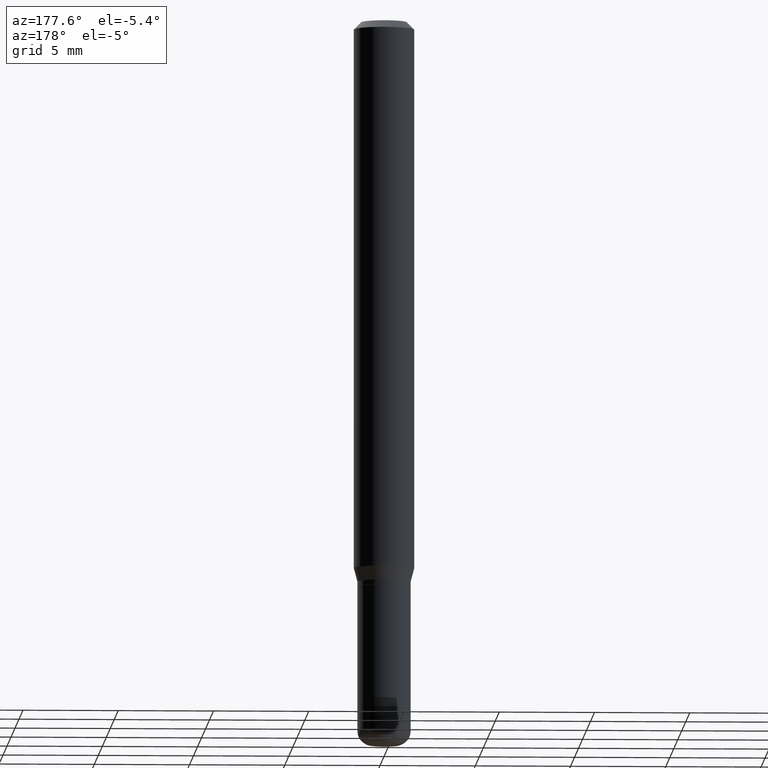
[diagram: clean part render]
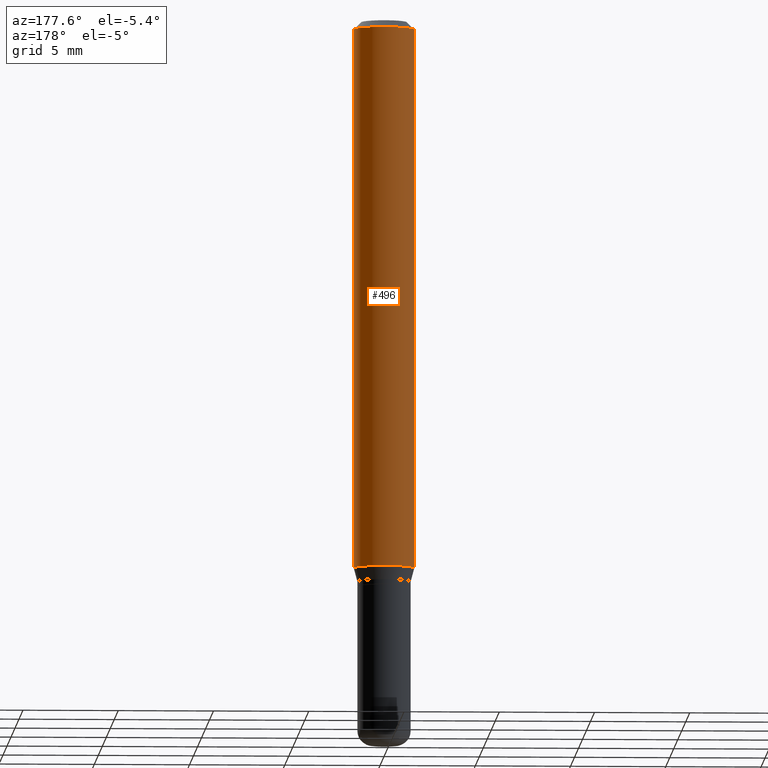
[diagram: same view with one face highlighted and labeled with its STEP entity id]
A machine part, auxiliary view. The second image highlights one B-rep face of the part: STEP entity #496.
In plain terms, the highlighted cylindrical surface (edge-blend (fillet) strip) has radius 1.5875 mm, axis along (-0, 0, 1).
Its self-contained STEP definition (entity closure, byte-faithful):
#18 = EDGE_CURVE ( 'NONE', #385, #346, #381, .T. ) ;
#55 = DIRECTION ( 'NONE',  ( -2.445468806185136597E-29, 3.491481338843145583E-15, 1.000000000000000000 ) ) ;
#78 = EDGE_CURVE ( 'NONE', #346, #249, #302, .T. ) ;
#113 = EDGE_CURVE ( 'NONE', #385, #225, #123, .T. ) ;
#123 = CIRCLE ( 'NONE', #152, 0.06250000000000000000 ) ;
#135 = LINE ( 'NONE', #264, #328 ) ;
#147 = CARTESIAN_POINT ( 'NONE',  ( 0.06250000000000000000, -4.364351673553916694E-16, 3.047610484872459871E-30 ) ) ;
#152 = AXIS2_PLACEMENT_3D ( 'NONE', #451, #327, #168 ) ;
#161 = CARTESIAN_POINT ( 'NONE',  ( 0.06250000000000000000, -4.388825627286632416E-15, -1.132009618943234042 ) ) ;
#168 = DIRECTION ( 'NONE',  ( 1.000000000000000000, -6.982962677686270655E-15, 0.000000000000000000 ) ) ;
#170 = DIRECTION ( 'NONE',  ( -2.445468806185136597E-29, 3.491481338843145583E-15, 1.000000000000000000 ) ) ;
#193 = CARTESIAN_POINT ( 'NONE',  ( -0.06250000000000000000, -1.558292130156881494E-15, -0.01499999999999970281 ) ) ;
#208 = DIRECTION ( 'NONE',  ( 1.000000000000000000, -6.982962677686266711E-15, 0.000000000000000000 ) ) ;
#212 = EDGE_CURVE ( 'NONE', #225, #249, #135, .T. ) ;
#213 = DIRECTION ( 'NONE',  ( 1.000000000000000000, -6.982962677686266711E-15, 4.876176775795935793E-29 ) ) ;
#225 = VERTEX_POINT ( 'NONE', #512 ) ;
#243 = ORIENTED_EDGE ( 'NONE', *, *, #78, .F. ) ;
#249 = VERTEX_POINT ( 'NONE', #193 ) ;
#252 = CARTESIAN_POINT ( 'NONE',  ( 0.000000000000000000, 0.000000000000000000, 0.000000000000000000 ) ) ;
#264 = CARTESIAN_POINT ( 'NONE',  ( -0.06250000000000000000, 4.440892098500626162E-16, -3.074334431409316114E-30 ) ) ;
#273 = VECTOR ( 'NONE', #464, 39.37007874015748143 ) ;
#279 = FACE_OUTER_BOUND ( 'NONE', #372, .T. ) ;
#302 = CIRCLE ( 'NONE', #338, 0.06250000000000000000 ) ;
#303 = DIRECTION ( 'NONE',  ( -2.445468806185136877E-29, 3.491481338843145188E-15, 1.000000000000000000 ) ) ;
#327 = DIRECTION ( 'NONE',  ( -2.445468806185136597E-29, 3.491481338843145583E-15, 1.000000000000000000 ) ) ;
#328 = VECTOR ( 'NONE', #303, 39.37007874015748143 ) ;
#329 = AXIS2_PLACEMENT_3D ( 'NONE', #252, #170, #213 ) ;
#338 = AXIS2_PLACEMENT_3D ( 'NONE', #487, #55, #208 ) ;
#346 = VERTEX_POINT ( 'NONE', #509 ) ;
#372 = EDGE_LOOP ( 'NONE', ( #415, #382, #243, #402 ) ) ;
#381 = LINE ( 'NONE', #147, #273 ) ;
#382 = ORIENTED_EDGE ( 'NONE', *, *, #212, .T. ) ;
#385 = VERTEX_POINT ( 'NONE', #161 ) ;
#402 = ORIENTED_EDGE ( 'NONE', *, *, #18, .F. ) ;
#415 = ORIENTED_EDGE ( 'NONE', *, *, #113, .T. ) ;
#451 = CARTESIAN_POINT ( 'NONE',  ( 2.768294211427201767E-29, -3.952390459931241535E-15, -1.132009618943234042 ) ) ;
#452 = CYLINDRICAL_SURFACE ( 'NONE', #329, 0.06250000000000000000 ) ;
#464 = DIRECTION ( 'NONE',  ( -2.445468806185136877E-29, 3.491481338843145188E-15, 1.000000000000000000 ) ) ;
#487 = CARTESIAN_POINT ( 'NONE',  ( 3.668203209277632395E-31, -5.237222008264614861E-17, -0.01499999999999970281 ) ) ;
#496 = ADVANCED_FACE ( 'NONE', ( #279 ), #452, .T. ) ;
#509 = CARTESIAN_POINT ( 'NONE',  ( 0.06250000000000000000, -4.888073874380378612E-16, -0.01499999999999970281 ) ) ;
#512 = CARTESIAN_POINT ( 'NONE',  ( -0.06250000000000000000, -3.508301250081179708E-15, -1.132009618943234042 ) ) ;